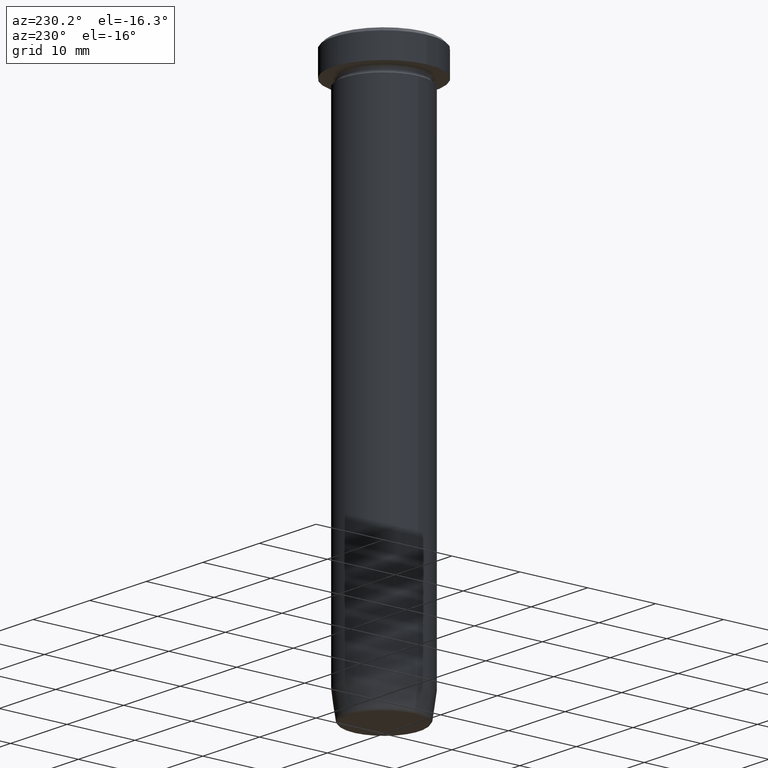
[diagram: clean part render]
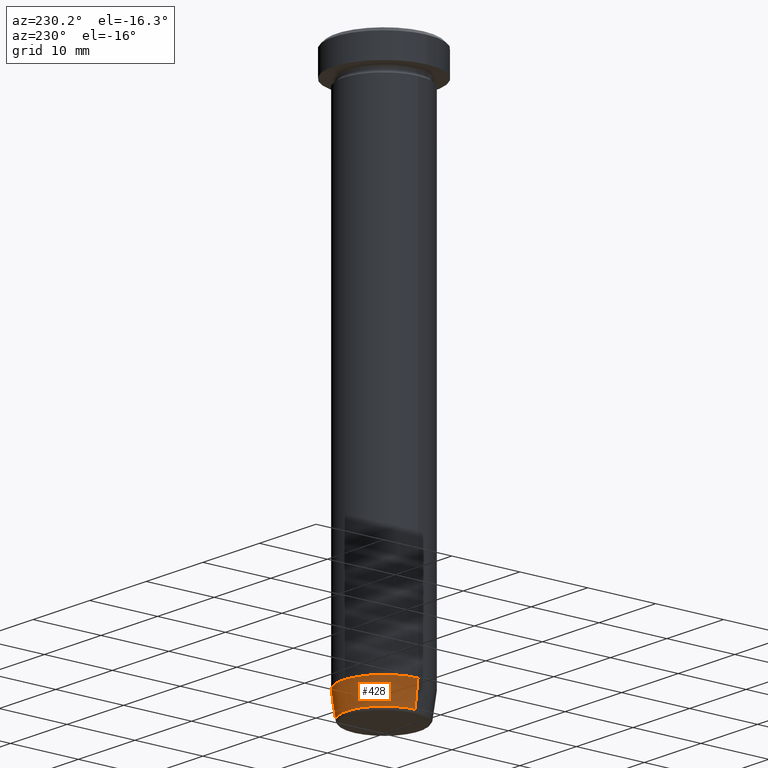
[diagram: same view with one face highlighted and labeled with its STEP entity id]
A machine part, auxiliary view. The second image highlights one B-rep face of the part: STEP entity #428.
In plain terms, the highlighted conical surface has half-angle 8 deg.
Its self-contained STEP definition (entity closure, byte-faithful):
#22 = ORIENTED_EDGE ( 'NONE', *, *, #323, .F. ) ;
#33 = DIRECTION ( 'NONE',  ( 0.1391731009600656876, 0.000000000000000000, 0.9902680687415703620 ) ) ;
#53 = CARTESIAN_POINT ( 'NONE',  ( -5.437836661190432963, 6.659429261412994003E-16, -80.00000000000000000 ) ) ;
#63 = CARTESIAN_POINT ( 'NONE',  ( 5.498327326653105196, 0.000000000000000000, -79.56958655048005369 ) ) ;
#82 = ORIENTED_EDGE ( 'NONE', *, *, #308, .T. ) ;
#89 = DIRECTION ( 'NONE',  ( -0.000000000000000000, -0.000000000000000000, 1.000000000000000000 ) ) ;
#96 = EDGE_CURVE ( 'NONE', #258, #180, #144, .T. ) ;
#106 = VERTEX_POINT ( 'NONE', #589 ) ;
#128 = ORIENTED_EDGE ( 'NONE', *, *, #552, .F. ) ;
#144 = CIRCLE ( 'NONE', #213, 5.498327326653105196 ) ;
#148 = CIRCLE ( 'NONE', #330, 6.000000000000000000 ) ;
#156 = CARTESIAN_POINT ( 'NONE',  ( -6.000000000000000000, 7.347880794884119736E-16, -76.00000000000000000 ) ) ;
#179 = CARTESIAN_POINT ( 'NONE',  ( 0.000000000000000000, 0.000000000000000000, -79.56958655048005369 ) ) ;
#180 = VERTEX_POINT ( 'NONE', #550 ) ;
#190 = EDGE_LOOP ( 'NONE', ( #494, #82, #22, #128 ) ) ;
#201 = VECTOR ( 'NONE', #33, 999.9999999999998863 ) ;
#213 = AXIS2_PLACEMENT_3D ( 'NONE', #179, #359, #545 ) ;
#215 = CARTESIAN_POINT ( 'NONE',  ( 0.000000000000000000, 0.000000000000000000, -80.00000000000000000 ) ) ;
#238 = CARTESIAN_POINT ( 'NONE',  ( 0.000000000000000000, 0.000000000000000000, -76.00000000000000000 ) ) ;
#258 = VERTEX_POINT ( 'NONE', #63 ) ;
#266 = DIRECTION ( 'NONE',  ( 1.000000000000000000, 0.000000000000000000, 0.000000000000000000 ) ) ;
#308 = EDGE_CURVE ( 'NONE', #180, #352, #425, .T. ) ;
#322 = CONICAL_SURFACE ( 'NONE', #366, 5.437836661190432963, 0.1396263401595466136 ) ;
#323 = EDGE_CURVE ( 'NONE', #106, #352, #148, .T. ) ;
#330 = AXIS2_PLACEMENT_3D ( 'NONE', #238, #430, #416 ) ;
#352 = VERTEX_POINT ( 'NONE', #156 ) ;
#355 = VECTOR ( 'NONE', #562, 999.9999999999998863 ) ;
#359 = DIRECTION ( 'NONE',  ( -0.000000000000000000, -0.000000000000000000, 1.000000000000000000 ) ) ;
#366 = AXIS2_PLACEMENT_3D ( 'NONE', #215, #89, #266 ) ;
#416 = DIRECTION ( 'NONE',  ( 1.000000000000000000, 0.000000000000000000, 0.000000000000000000 ) ) ;
#425 = LINE ( 'NONE', #53, #355 ) ;
#428 = ADVANCED_FACE ( 'NONE', ( #544 ), #322, .T. ) ;
#430 = DIRECTION ( 'NONE',  ( -0.000000000000000000, -0.000000000000000000, 1.000000000000000000 ) ) ;
#449 = CARTESIAN_POINT ( 'NONE',  ( 5.437836661190432963, 0.000000000000000000, -80.00000000000000000 ) ) ;
#451 = LINE ( 'NONE', #449, #201 ) ;
#494 = ORIENTED_EDGE ( 'NONE', *, *, #96, .T. ) ;
#544 = FACE_OUTER_BOUND ( 'NONE', #190, .T. ) ;
#545 = DIRECTION ( 'NONE',  ( -1.000000000000000000, 0.000000000000000000, 0.000000000000000000 ) ) ;
#550 = CARTESIAN_POINT ( 'NONE',  ( -5.498327326653105196, 7.040694878067134723E-16, -79.56958655048005369 ) ) ;
#552 = EDGE_CURVE ( 'NONE', #258, #106, #451, .T. ) ;
#562 = DIRECTION ( 'NONE',  ( -0.1391731009600656876, 1.704378926181559063E-17, 0.9902680687415703620 ) ) ;
#589 = CARTESIAN_POINT ( 'NONE',  ( 6.000000000000000000, 0.000000000000000000, -76.00000000000000000 ) ) ;